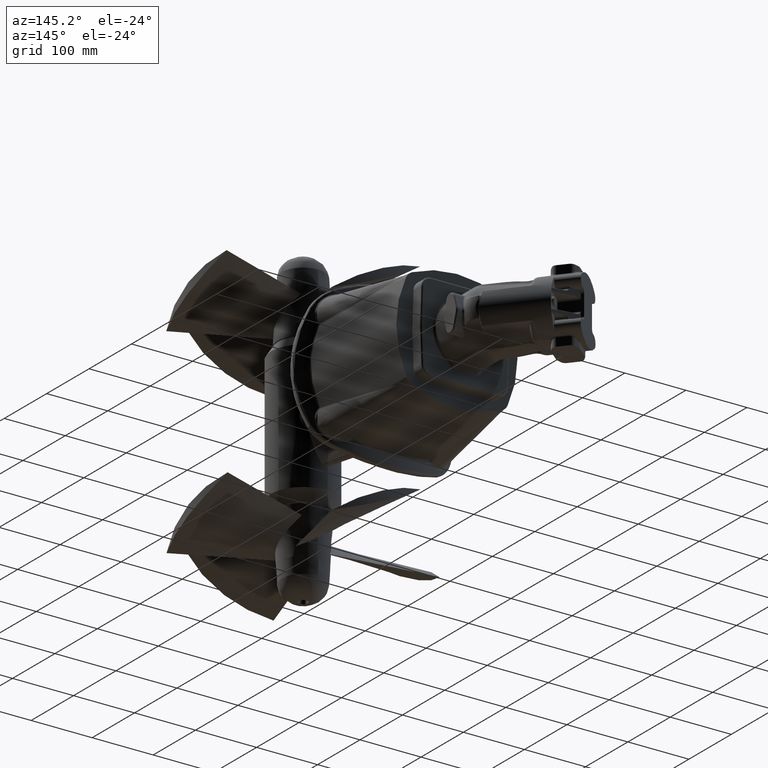
[diagram: clean part render]
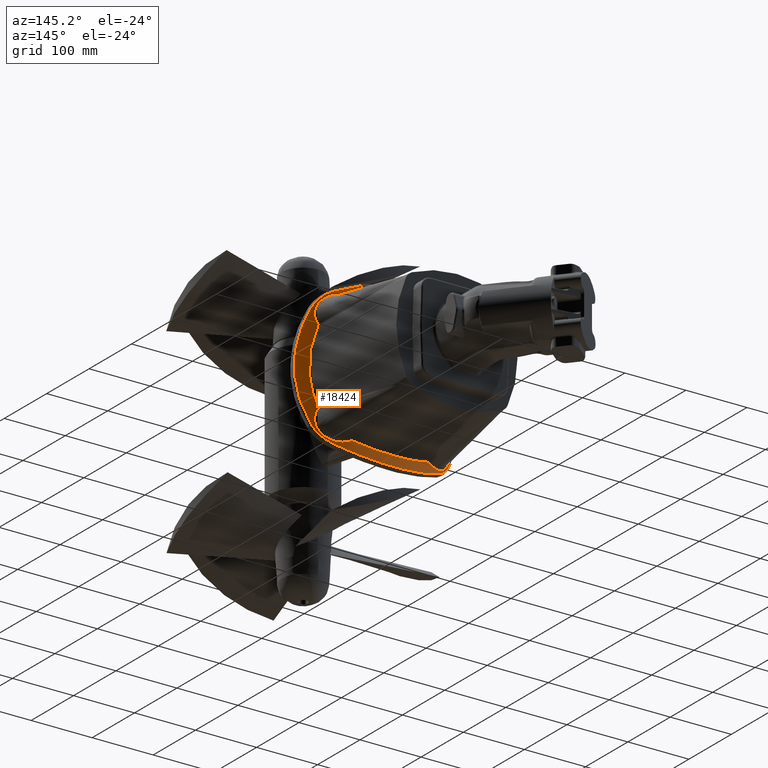
[diagram: same view with one face highlighted and labeled with its STEP entity id]
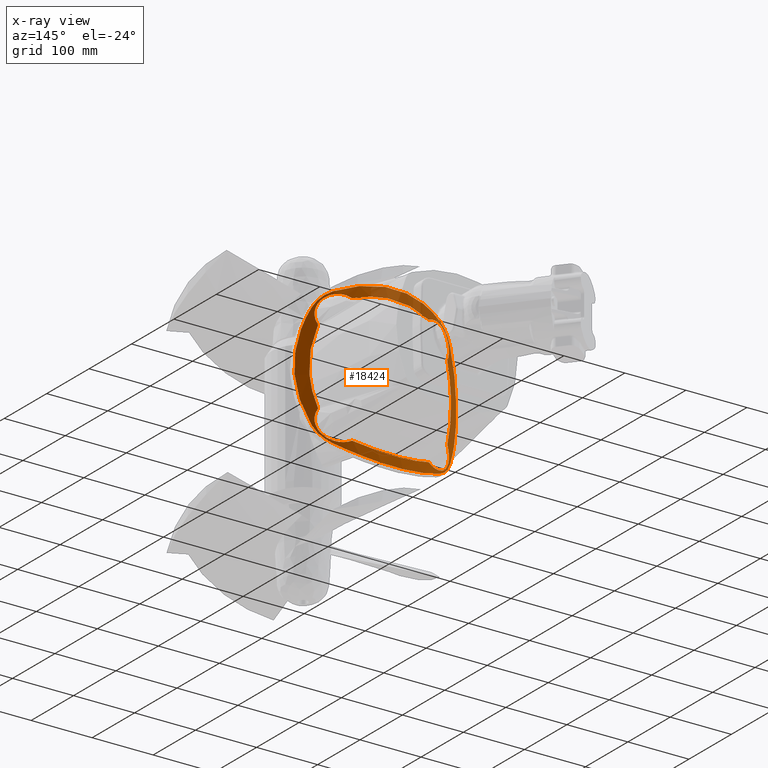
[diagram: x-ray of the same camera — body ghosted, the highlighted face saturated]
A machine part, auxiliary view. The second image highlights one B-rep face of the part: STEP entity #18424.
The next image is the same camera in x-ray: the body ghosted, the highlighted face saturated — about 28% of this face is hidden behind the body in this view.
In plain terms, the highlighted cylindrical surface (partial cylindrical patch) has radius 218.5 mm, axis along (0, -0, 1).
Its self-contained STEP definition (entity closure, byte-faithful):
#2175=B_SPLINE_CURVE_WITH_KNOTS('',3,(#30366,#30367,#30368,#30369),
 .UNSPECIFIED.,.F.,.F.,(4,4),(-0.1566549581717,-8.0093701911654E-16),
 .UNSPECIFIED.);
#2176=B_SPLINE_CURVE_WITH_KNOTS('',3,(#30394,#30395,#30396,#30397,#30398),
 .UNSPECIFIED.,.F.,.F.,(4,1,4),(-0.158430321313645,-0.0905316121792253,
1.23113629245577E-15),.UNSPECIFIED.);
#2182=B_SPLINE_CURVE_WITH_KNOTS('',3,(#30710,#30711,#30712,#30713,#30714,
#30715,#30716,#30717,#30718,#30719),.UNSPECIFIED.,.F.,.F.,(4,1,1,1,1,1,
1,4),(9.72064362525098,10.6409701929338,11.5612967606167,15.2426030313481,
17.0832561667137,18.9239093020794,20.7645624374451,22.6052155728108),
 .UNSPECIFIED.);
#2183=B_SPLINE_CURVE_WITH_KNOTS('',3,(#30743,#30744,#30745,#30746,#30747,
#30748,#30749,#30750,#30751,#30752,#30753),.UNSPECIFIED.,.F.,.F.,(4,1,1,
1,1,1,1,1,4),(-18.3472174276045,-15.7261863665181,-14.415670835975,-13.1051553054318,
-10.4841242443454,-7.86309318325907,-5.24206212217271,-2.62103106108636,
0.),.UNSPECIFIED.);
#2184=B_SPLINE_CURVE_WITH_KNOTS('',3,(#30755,#30756,#30757,#30758,#30759,
#30760,#30761,#30762,#30763,#30764,#30765,#30766,#30767,#30768,#30769,#30770,
#30771,#30772,#30773,#30774,#30775,#30776,#30777,#30778,#30779,#30780,#30781,
#30782,#30783,#30784,#30785,#30786,#30787,#30788,#30789,#30790),
 .UNSPECIFIED.,.F.,.F.,(4,2,2,2,2,2,2,2,2,2,2,2,2,2,2,2,2,4),(0.,0.313338962880444,
0.627831069228086,0.785734745888215,1.103344320034,1.26315467786212,1.50358712690408,
1.58393594588746,1.7449900545711,1.82570130926622,1.98754206155304,2.06854044917885,
2.23074352654346,2.31195524119787,2.55555119305043,2.71780441462933,3.20447675905543,
3.85533213775047),.UNSPECIFIED.);
#2185=B_SPLINE_CURVE_WITH_KNOTS('',3,(#30792,#30793,#30794,#30795,#30796,
#30797,#30798,#30799,#30800,#30801),.UNSPECIFIED.,.F.,.F.,(4,1,1,1,1,1,
1,4),(-18.1158131645623,-15.5278398553391,-12.9398665461159,-10.3518932368927,
-7.76391992766956,-5.17594661844637,-2.58797330922319,0.),.UNSPECIFIED.);
#2186=B_SPLINE_CURVE_WITH_KNOTS('',3,(#30803,#30804,#30805,#30806,#30807,
#30808,#30809,#30810,#30811,#30812,#30813,#30814,#30815,#30816,#30817,#30818,
#30819,#30820,#30821,#30822,#30823,#30824,#30825,#30826,#30827,#30828,#30829,
#30830,#30831,#30832,#30833,#30834,#30835,#30836,#30837,#30838),
 .UNSPECIFIED.,.F.,.F.,(4,2,2,2,2,2,2,2,2,2,2,2,2,2,2,2,2,4),(0.,0.325645222580926,
0.649827350207644,0.811524680246878,1.13444218756611,1.29578255426145,1.53781048990584,
1.61851693522141,1.78001781312159,1.86081456996459,2.02253853885232,2.10332921667944,
2.26467975519684,2.34504926709908,2.58493154959498,2.7439482335516,3.21768948880086,
3.84481511434516),.UNSPECIFIED.);
#2187=B_SPLINE_CURVE_WITH_KNOTS('',3,(#30840,#30841,#30842,#30843,#30844,
#30845,#30846,#30847,#30848,#30849,#30850),.UNSPECIFIED.,.F.,.F.,(4,1,1,
1,1,1,1,1,4),(-18.3472174276045,-15.7261863665181,-14.415670835975,-13.1051553054318,
-10.4841242443454,-7.86309318325907,-5.24206212217271,-2.62103106108636,
-4.56142840676578E-15),.UNSPECIFIED.);
#2188=B_SPLINE_CURVE_WITH_KNOTS('',3,(#30852,#30853,#30854,#30855,#30856,
#30857,#30858,#30859,#30860,#30861,#30862,#30863,#30864,#30865,#30866,#30867,
#30868,#30869,#30870,#30871,#30872,#30873,#30874,#30875,#30876,#30877,#30878,
#30879,#30880,#30881,#30882,#30883,#30884,#30885,#30886,#30887),
 .UNSPECIFIED.,.F.,.F.,(4,2,2,2,2,2,2,2,2,2,2,2,2,2,2,2,2,4),(0.,0.313181047381019,
0.627126247577834,0.784578230117367,1.1008669440528,1.25988358705548,1.49976587192473,
1.58013538535829,1.74148593109472,1.82227661434483,1.98400058441611,2.06479733701839,
2.22629820865227,2.30700465238583,2.54903258604403,2.71037299506959,3.19498842063407,
3.84481511738857),.UNSPECIFIED.);
#2189=B_SPLINE_CURVE_WITH_KNOTS('',3,(#30889,#30890,#30891,#30892,#30893,
#30894,#30895,#30896,#30897,#30898),.UNSPECIFIED.,.F.,.F.,(4,1,1,1,1,1,
1,4),(-18.1158131645623,-15.5278398553391,-12.9398665461159,-10.3518932368927,
-7.76391992766955,-5.17594661844637,-2.58797330922318,0.),.UNSPECIFIED.);
#2190=B_SPLINE_CURVE_WITH_KNOTS('',3,(#30899,#30900,#30901,#30902,#30903,
#30904,#30905,#30906,#30907,#30908,#30909,#30910,#30911,#30912,#30913,#30914,
#30915,#30916,#30917,#30918,#30919,#30920,#30921,#30922,#30923,#30924,#30925,
#30926,#30927,#30928,#30929,#30930,#30931,#30932,#30933,#30934),
 .UNSPECIFIED.,.F.,.F.,(4,2,2,2,2,2,2,2,2,2,2,2,2,2,2,2,2,4),(1.07088497824771E-14,
0.325905275486002,0.650856037812379,0.813121719656133,1.1375277994646,1.29978098169107,
1.54337694099187,1.62458865648814,1.78679173912611,1.86779013072979,2.0296308817571,
2.11034213123071,2.27139623215231,2.35174504900884,2.59217749477283,2.75198789278476,
3.22750169803704,3.85533214195846),.UNSPECIFIED.);
#2191=B_SPLINE_CURVE_WITH_KNOTS('',3,(#30936,#30937,#30938,#30939),
 .UNSPECIFIED.,.F.,.F.,(4,4),(-0.156654958171696,-4.14132169534547E-16),
 .UNSPECIFIED.);
#2192=B_SPLINE_CURVE_WITH_KNOTS('',3,(#30941,#30942,#30943,#30944,#30945,
#30946,#30947,#30948,#30949,#30950,#30951,#30952,#30953,#30954,#30955,#30956,
#30957),.UNSPECIFIED.,.F.,.F.,(4,1,1,1,1,1,1,1,1,1,1,1,1,1,4),(16.4724657558533,
17.07834818434,17.6842306128267,18.4415836484351,18.8959954698001,20.1077603267736,
20.7136427552603,21.9254076122337,22.228348826477,22.4555547371595,22.5312900407204,
23.7430548976938,24.3489373261805,24.5004079333021,24.9548197546672),
 .UNSPECIFIED.);
#2193=B_SPLINE_CURVE_WITH_KNOTS('',3,(#30959,#30960,#30961,#30962,#30963),
 .UNSPECIFIED.,.F.,.F.,(4,1,4),(-0.158430321313518,-0.0678987091343641,
9.54083884702158E-16),.UNSPECIFIED.);
#2194=B_SPLINE_CURVE_WITH_KNOTS('',3,(#30965,#30966,#30967,#30968,#30969,
#30970,#30971,#30972,#30973),.UNSPECIFIED.,.F.,.F.,(4,1,1,1,1,1,4),(8.93978121183471,
10.7116276507684,14.2553205286357,16.0271669675694,17.7990134065031,19.5708598454368,
21.3427062843705),.UNSPECIFIED.);
#2195=B_SPLINE_CURVE_WITH_KNOTS('',3,(#30975,#30976,#30977,#30978,#30979),
 .UNSPECIFIED.,.F.,.F.,(4,1,4),(-0.158430321313516,-0.0678987091343639,
3.92959384243506E-16),.UNSPECIFIED.);
#2196=B_SPLINE_CURVE_WITH_KNOTS('',3,(#30981,#30982,#30983,#30984,#30985,
#30986,#30987,#30988,#30989,#30990,#30991,#30992,#30993,#30994,#30995),
 .UNSPECIFIED.,.F.,.F.,(4,1,1,1,1,1,1,1,1,1,1,1,4),(16.2653519674738,16.8710447299895,
17.4767374925052,18.0824302550208,18.6881230175365,19.2938157800522,21.1108940675992,
21.8680100207438,22.3222795926306,22.6251259738884,23.5336651176619,23.8365114989198,
24.7450506426933),.UNSPECIFIED.);
#2197=B_SPLINE_CURVE_WITH_KNOTS('',3,(#30997,#30998,#30999,#31000),
 .UNSPECIFIED.,.F.,.F.,(4,4),(-0.156654958171698,6.56410601181927E-16),
 .UNSPECIFIED.);
#2198=B_SPLINE_CURVE_WITH_KNOTS('',3,(#31002,#31003,#31004,#31005,#31006,
#31007,#31008,#31009,#31010,#31011),.UNSPECIFIED.,.F.,.F.,(4,1,1,1,1,1,
1,4),(9.72064362525099,10.6409701929338,11.5612967606167,15.2426030313481,
17.0832561667137,18.9239093020794,20.7645624374451,22.6052155728108),
 .UNSPECIFIED.);
#2199=B_SPLINE_CURVE_WITH_KNOTS('',3,(#31013,#31014,#31015,#31016),
 .UNSPECIFIED.,.F.,.F.,(4,4),(-0.156654958171696,-1.96524688343491E-15),
 .UNSPECIFIED.);
#2200=B_SPLINE_CURVE_WITH_KNOTS('',3,(#31018,#31019,#31020,#31021,#31022,
#31023,#31024,#31025,#31026,#31027,#31028,#31029,#31030,#31031,#31032,#31033,
#31034),.UNSPECIFIED.,.F.,.F.,(4,1,1,1,1,1,1,1,1,1,1,1,1,1,4),(16.4744251555581,
17.08030718003,17.686189204502,18.443541735092,18.897953253446,20.10971730239,
20.7155993268619,21.9273633758059,22.2303043880419,22.3060396411009,22.5332454002779,
23.7450094492219,24.3508914736938,24.5023619798118,24.9567734981658),
 .UNSPECIFIED.);
#2201=B_SPLINE_CURVE_WITH_KNOTS('',3,(#31036,#31037,#31038,#31039,#31040),
 .UNSPECIFIED.,.F.,.F.,(4,1,4),(-0.158430321313644,-0.0905316121792253,
-6.15436200314307E-17),.UNSPECIFIED.);
#2202=B_SPLINE_CURVE_WITH_KNOTS('',3,(#31041,#31042,#31043,#31044,#31045,
#31046,#31047,#31048,#31049,#31050),.UNSPECIFIED.,.F.,.F.,(4,1,1,1,1,1,
1,4),(9.07444144829569,10.8462878872294,12.6181343261631,14.3899807650967,
16.1618272040304,17.9336736429641,19.7055200818978,21.4773665208314),
 .UNSPECIFIED.);
#2203=B_SPLINE_CURVE_WITH_KNOTS('',3,(#31051,#31052,#31053,#31054,#31055,
#31056,#31057,#31058,#31059,#31060,#31061,#31062,#31063,#31064,#31065),
 .UNSPECIFIED.,.F.,.F.,(4,1,1,1,1,1,1,1,1,1,1,1,4),(16.2673054806293,16.872998116822,
17.4786907530147,18.0843833892075,18.6900760254002,19.2957686615929,21.112846570171,
21.8699623654119,22.3242318425564,22.7785013197009,23.5356171149418,23.8384634330382,
24.7470023873272),.UNSPECIFIED.);
#3042=FACE_BOUND('',#5333,.T.);
#3203=CYLINDRICAL_SURFACE('',#19982,218.5);
#3843=FACE_OUTER_BOUND('',#5332,.T.);
#5332=EDGE_LOOP('',(#12921,#12922,#12923,#12924,#12925,#12926,#12927,#12928));
#5333=EDGE_LOOP('',(#12929,#12930,#12931,#12932,#12933,#12934,#12935,#12936,
#12937,#12938,#12939,#12940,#12941,#12942,#12943,#12944));
#7796=VERTEX_POINT('',#30357);
#7798=VERTEX_POINT('',#30364);
#7800=VERTEX_POINT('',#30391);
#7801=VERTEX_POINT('',#30393);
#7804=VERTEX_POINT('',#30708);
#7805=VERTEX_POINT('',#30741);
#7806=VERTEX_POINT('',#30742);
#7807=VERTEX_POINT('',#30754);
#7808=VERTEX_POINT('',#30791);
#7809=VERTEX_POINT('',#30802);
#7810=VERTEX_POINT('',#30839);
#7811=VERTEX_POINT('',#30851);
#7812=VERTEX_POINT('',#30888);
#7813=VERTEX_POINT('',#30935);
#7814=VERTEX_POINT('',#30940);
#7815=VERTEX_POINT('',#30958);
#7816=VERTEX_POINT('',#30964);
#7817=VERTEX_POINT('',#30974);
#7818=VERTEX_POINT('',#30980);
#7819=VERTEX_POINT('',#30996);
#7820=VERTEX_POINT('',#31001);
#7821=VERTEX_POINT('',#31012);
#7822=VERTEX_POINT('',#31017);
#7823=VERTEX_POINT('',#31035);
#9606=EDGE_CURVE('',#7798,#7796,#2175,.T.);
#9608=EDGE_CURVE('',#7800,#7801,#2176,.T.);
#9618=EDGE_CURVE('',#7804,#7798,#2182,.T.);
#9619=EDGE_CURVE('',#7805,#7806,#2183,.T.);
#9620=EDGE_CURVE('',#7807,#7805,#2184,.T.);
#9621=EDGE_CURVE('',#7808,#7807,#2185,.T.);
#9622=EDGE_CURVE('',#7809,#7808,#2186,.T.);
#9623=EDGE_CURVE('',#7810,#7809,#2187,.T.);
#9624=EDGE_CURVE('',#7811,#7810,#2188,.T.);
#9625=EDGE_CURVE('',#7812,#7811,#2189,.T.);
#9626=EDGE_CURVE('',#7806,#7812,#2190,.T.);
#9627=EDGE_CURVE('',#7813,#7804,#2191,.T.);
#9628=EDGE_CURVE('',#7814,#7813,#2192,.T.);
#9629=EDGE_CURVE('',#7815,#7814,#2193,.T.);
#9630=EDGE_CURVE('',#7816,#7815,#2194,.T.);
#9631=EDGE_CURVE('',#7817,#7816,#2195,.T.);
#9632=EDGE_CURVE('',#7818,#7817,#2196,.T.);
#9633=EDGE_CURVE('',#7819,#7818,#2197,.T.);
#9634=EDGE_CURVE('',#7820,#7819,#2198,.T.);
#9635=EDGE_CURVE('',#7821,#7820,#2199,.T.);
#9636=EDGE_CURVE('',#7822,#7821,#2200,.T.);
#9637=EDGE_CURVE('',#7823,#7822,#2201,.T.);
#9638=EDGE_CURVE('',#7801,#7823,#2202,.T.);
#9639=EDGE_CURVE('',#7796,#7800,#2203,.T.);
#12921=ORIENTED_EDGE('',*,*,#9619,.F.);
#12922=ORIENTED_EDGE('',*,*,#9620,.F.);
#12923=ORIENTED_EDGE('',*,*,#9621,.F.);
#12924=ORIENTED_EDGE('',*,*,#9622,.F.);
#12925=ORIENTED_EDGE('',*,*,#9623,.F.);
#12926=ORIENTED_EDGE('',*,*,#9624,.F.);
#12927=ORIENTED_EDGE('',*,*,#9625,.F.);
#12928=ORIENTED_EDGE('',*,*,#9626,.F.);
#12929=ORIENTED_EDGE('',*,*,#9606,.F.);
#12930=ORIENTED_EDGE('',*,*,#9618,.F.);
#12931=ORIENTED_EDGE('',*,*,#9627,.F.);
#12932=ORIENTED_EDGE('',*,*,#9628,.F.);
#12933=ORIENTED_EDGE('',*,*,#9629,.F.);
#12934=ORIENTED_EDGE('',*,*,#9630,.F.);
#12935=ORIENTED_EDGE('',*,*,#9631,.F.);
#12936=ORIENTED_EDGE('',*,*,#9632,.F.);
#12937=ORIENTED_EDGE('',*,*,#9633,.F.);
#12938=ORIENTED_EDGE('',*,*,#9634,.F.);
#12939=ORIENTED_EDGE('',*,*,#9635,.F.);
#12940=ORIENTED_EDGE('',*,*,#9636,.F.);
#12941=ORIENTED_EDGE('',*,*,#9637,.F.);
#12942=ORIENTED_EDGE('',*,*,#9638,.F.);
#12943=ORIENTED_EDGE('',*,*,#9608,.F.);
#12944=ORIENTED_EDGE('',*,*,#9639,.F.);
#18424=ADVANCED_FACE('',(#3843,#3042),#3203,.T.);
#19982=AXIS2_PLACEMENT_3D('',#30740,#22771,#22772);
#22771=DIRECTION('center_axis',(1.66533453693773E-16,-4.8305084843109E-16,
1.));
#22772=DIRECTION('ref_axis',(-1.,5.02815290480203E-16,1.66533453693774E-16));
#30357=CARTESIAN_POINT('',(67.3953376655915,108.775883055372,105.222557000298));
#30364=CARTESIAN_POINT('',(65.94800554383,109.210006990103,105.086151067995));
#30366=CARTESIAN_POINT('Ctrl Pts',(65.94800554383,109.210006990103,105.086151067995));
#30367=CARTESIAN_POINT('Ctrl Pts',(66.4201040670008,109.070179557167,104.932711246276));
#30368=CARTESIAN_POINT('Ctrl Pts',(66.9557256982009,108.90940220942,104.98643619193));
#30369=CARTESIAN_POINT('Ctrl Pts',(67.3953376655915,108.775883055372,105.222557000298));
#30391=CARTESIAN_POINT('',(110.084779868988,90.6676953241571,62.3334979342253));
#30393=CARTESIAN_POINT('',(109.969382562427,90.7318187988507,60.8088923590658));
#30394=CARTESIAN_POINT('Ctrl Pts',(110.084779868988,90.667695324157,62.3334979342253));
#30395=CARTESIAN_POINT('Ctrl Pts',(109.979296032883,90.7263518375329,62.1430914301706));
#30396=CARTESIAN_POINT('Ctrl Pts',(109.80911786188,90.820723710757,61.6380405077748));
#30397=CARTESIAN_POINT('Ctrl Pts',(109.872683557868,90.7855138560104,61.0890606307606));
#30398=CARTESIAN_POINT('Ctrl Pts',(109.969382562427,90.7318187988507,60.8088923590658));
#30708=CARTESIAN_POINT('',(-58.1548519818797,109.210006990103,105.086151067995));
#30710=CARTESIAN_POINT('Ctrl Pts',(-58.1548519818797,109.210006990103,105.086151067995));
#30711=CARTESIAN_POINT('Ctrl Pts',(-55.3760572517268,110.033038020075,105.989305276412));
#30712=CARTESIAN_POINT('Ctrl Pts',(-49.7672034797093,111.572236254259,107.676575240901));
#30713=CARTESIAN_POINT('Ctrl Pts',(-32.5041634157577,115.590218479754,112.072500323683));
#30714=CARTESIAN_POINT('Ctrl Pts',(-11.2534962590815,118.277877653465,115.000075914142));
#30715=CARTESIAN_POINT('Ctrl Pts',(12.9849416108882,118.267278819013,114.989006308675));
#30716=CARTESIAN_POINT('Ctrl Pts',(31.1920291199521,116.752930317803,113.338575226992));
#30717=CARTESIAN_POINT('Ctrl Pts',(49.026433586474,113.741847945499,110.051777911848));
#30718=CARTESIAN_POINT('Ctrl Pts',(60.3904160835242,110.856069050046,106.892459484829));
#30719=CARTESIAN_POINT('Ctrl Pts',(65.94800554383,109.210006990103,105.086151067995));
#30740=CARTESIAN_POINT('Origin',(3.89657678097504,-100.293859772514,-3.22507180430981E-8));
#30741=CARTESIAN_POINT('',(-84.064652815031,99.7188200454385,-111.907491916442));
#30742=CARTESIAN_POINT('',(91.8578063769813,99.7188200454384,-111.907491916442));
#30743=CARTESIAN_POINT('Ctrl Pts',(-84.064652815031,99.7188200454385,-111.907491916442));
#30744=CARTESIAN_POINT('Ctrl Pts',(-76.5975589645037,103.002685634355,-115.314039439292));
#30745=CARTESIAN_POINT('Ctrl Pts',(-64.8403015673793,107.417012753066,-119.88006149377));
#30746=CARTESIAN_POINT('Ctrl Pts',(-48.3960615511409,111.987338956805,-124.596229831582));
#30747=CARTESIAN_POINT('Ctrl Pts',(-31.410524983108,115.643445792245,-128.363777529929));
#30748=CARTESIAN_POINT('Ctrl Pts',(-9.51313056322293,118.337525427584,-131.135136833688));
#30749=CARTESIAN_POINT('Ctrl Pts',(17.1919183102008,118.342271401838,-131.140083932874));
#30750=CARTESIAN_POINT('Ctrl Pts',(43.4635806525125,115.127839722858,-127.833316815002));
#30751=CARTESIAN_POINT('Ctrl Pts',(68.6676165067136,108.908560264867,-121.422843135002));
#30752=CARTESIAN_POINT('Ctrl Pts',(84.390712526454,103.002685634355,-115.314039439292));
#30753=CARTESIAN_POINT('Ctrl Pts',(91.8578063769813,99.7188200454384,-111.907491916442));
#30754=CARTESIAN_POINT('',(-109.568792020398,86.4355168203736,-86.7535239587462));
#30755=CARTESIAN_POINT('Ctrl Pts',(-109.568792020398,86.4355168203736,-86.7535239587462));
#30756=CARTESIAN_POINT('Ctrl Pts',(-109.137996274051,86.6972881556031,-87.6720685214567));
#30757=CARTESIAN_POINT('Ctrl Pts',(-108.680612100326,86.9731755506148,-88.5763180320649));
#30758=CARTESIAN_POINT('Ctrl Pts',(-107.71375291928,87.5510303617752,-90.3556044414028));
#30759=CARTESIAN_POINT('Ctrl Pts',(-107.204095628277,87.8530853726808,-91.2305149568838));
#30760=CARTESIAN_POINT('Ctrl Pts',(-106.403018563165,88.3230686554845,-92.5173255034503));
#30761=CARTESIAN_POINT('Ctrl Pts',(-106.129291489666,88.4828939758854,-92.9428639365705));
#30762=CARTESIAN_POINT('Ctrl Pts',(-105.287754858973,88.9717061917662,-94.2098364022499));
#30763=CARTESIAN_POINT('Ctrl Pts',(-104.7024873456,89.308302723693,-95.0366125749681));
#30764=CARTESIAN_POINT('Ctrl Pts',(-103.791037342629,89.8264991746315,-96.2475858518049));
#30765=CARTESIAN_POINT('Ctrl Pts',(-103.480650385542,90.0019956618075,-96.6475542813853));
#30766=CARTESIAN_POINT('Ctrl Pts',(-102.6888182849,90.4470676815599,-97.6375837913471));
#30767=CARTESIAN_POINT('Ctrl Pts',(-102.200477733983,90.7192072997132,-98.2211944453832));
#30768=CARTESIAN_POINT('Ctrl Pts',(-101.532852674005,91.0877535725839,-98.9843160089608));
#30769=CARTESIAN_POINT('Ctrl Pts',(-101.364283240358,91.1805221526788,-99.1741590419489));
#30770=CARTESIAN_POINT('Ctrl Pts',(-100.853861616003,91.4605314831939,-99.7405576006975));
#30771=CARTESIAN_POINT('Ctrl Pts',(-100.508028994798,91.6490682168159,-100.113120916613));
#30772=CARTESIAN_POINT('Ctrl Pts',(-99.9812545459909,91.9343540749029,-100.664175300201));
#30773=CARTESIAN_POINT('Ctrl Pts',(-99.8041188301025,92.0299733978691,-100.846765045318));
#30774=CARTESIAN_POINT('Ctrl Pts',(-99.2680330049826,92.3183888776856,-101.391279119529));
#30775=CARTESIAN_POINT('Ctrl Pts',(-98.9053135890888,92.5122462332126,-101.748993588134));
#30776=CARTESIAN_POINT('Ctrl Pts',(-98.3538717330636,92.8049211550311,-102.277094201666));
#30777=CARTESIAN_POINT('Ctrl Pts',(-98.1687372061958,92.9028433273633,-102.451794521347));
#30778=CARTESIAN_POINT('Ctrl Pts',(-97.6093486113128,93.1976776310839,-102.971952889796));
#30779=CARTESIAN_POINT('Ctrl Pts',(-97.2315727327403,93.3954094377314,-103.313013092689));
#30780=CARTESIAN_POINT('Ctrl Pts',(-96.6579717959114,93.6934577328455,-103.815828437269));
#30781=CARTESIAN_POINT('Ctrl Pts',(-96.4654815786499,93.7931175180354,-103.982081216793));
#30782=CARTESIAN_POINT('Ctrl Pts',(-95.6912827380093,94.1924770879355,-104.640926462458));
#30783=CARTESIAN_POINT('Ctrl Pts',(-95.0995321968368,94.4944242575558,-105.122522740981));
#30784=CARTESIAN_POINT('Ctrl Pts',(-94.0960554967334,95.000523547726,-105.90322616972));
#30785=CARTESIAN_POINT('Ctrl Pts',(-93.6902080271827,95.2036573994416,-106.209560745685));
#30786=CARTESIAN_POINT('Ctrl Pts',(-92.0491503823109,96.0185383766287,-107.41103710209));
#30787=CARTESIAN_POINT('Ctrl Pts',(-90.7781124455521,96.6351570382729,-108.258706670955));
#30788=CARTESIAN_POINT('Ctrl Pts',(-87.7265941425096,98.0774575264386,-110.106574104464));
#30789=CARTESIAN_POINT('Ctrl Pts',(-85.9188842539454,98.9033693576574,-111.061576806566));
#30790=CARTESIAN_POINT('Ctrl Pts',(-84.064652815031,99.7188200454385,-111.907491916442));
#30791=CARTESIAN_POINT('',(-109.568792020398,86.4355168203735,86.7535238942451));
#30792=CARTESIAN_POINT('Ctrl Pts',(-109.568792020398,86.4355168203735,86.753523894245));
#30793=CARTESIAN_POINT('Ctrl Pts',(-113.126880944363,84.2734581269202,79.1669512261895));
#30794=CARTESIAN_POINT('Ctrl Pts',(-119.342533264153,80.2184472928578,63.5053115483124));
#30795=CARTESIAN_POINT('Ctrl Pts',(-125.777475394888,75.5991615155771,38.6711881142813));
#30796=CARTESIAN_POINT('Ctrl Pts',(-129.060203029711,73.099357823602,13.0253072801163));
#30797=CARTESIAN_POINT('Ctrl Pts',(-129.066289813177,73.0940661282161,-12.9597723021451));
#30798=CARTESIAN_POINT('Ctrl Pts',(-125.7866475809,75.59235820107,-38.6107070789086));
#30799=CARTESIAN_POINT('Ctrl Pts',(-119.373841312242,80.1971505111735,-63.4161680207077));
#30800=CARTESIAN_POINT('Ctrl Pts',(-113.126880944363,84.2734581269203,-79.1669512906906));
#30801=CARTESIAN_POINT('Ctrl Pts',(-109.568792020398,86.4355168203736,-86.7535239587463));
#30802=CARTESIAN_POINT('',(-84.0646528150309,99.7188200454384,111.907491851941));
#30803=CARTESIAN_POINT('Ctrl Pts',(-84.0646528150309,99.7188200454384,111.907491851941));
#30804=CARTESIAN_POINT('Ctrl Pts',(-84.992388268108,99.3108221561709,111.484251569603));
#30805=CARTESIAN_POINT('Ctrl Pts',(-85.9092387171701,98.899897546624,111.033400522073));
#30806=CARTESIAN_POINT('Ctrl Pts',(-87.7130868321409,98.0767481717837,110.079926012898));
#30807=CARTESIAN_POINT('Ctrl Pts',(-88.6001960754412,97.6645409644782,109.577546188243));
#30808=CARTESIAN_POINT('Ctrl Pts',(-89.9077038206896,97.0465530960776,108.785783097527));
#30809=CARTESIAN_POINT('Ctrl Pts',(-90.3391693924857,96.8408637083784,108.515852368791));
#30810=CARTESIAN_POINT('Ctrl Pts',(-91.6206093357719,96.2248798151496,107.687917346075));
#30811=CARTESIAN_POINT('Ctrl Pts',(-92.4589257086677,95.8150579259799,107.111019608299));
#30812=CARTESIAN_POINT('Ctrl Pts',(-93.6900730371519,95.2037245596023,106.209659343026));
#30813=CARTESIAN_POINT('Ctrl Pts',(-94.0959256823524,95.0005884406345,105.903325548858));
#30814=CARTESIAN_POINT('Ctrl Pts',(-95.0992441545825,94.4945692930563,105.122745943434));
#30815=CARTESIAN_POINT('Ctrl Pts',(-95.6910287252787,94.1926078975581,104.641141831836));
#30816=CARTESIAN_POINT('Ctrl Pts',(-96.4656073628611,93.793052432758,103.981973378104));
#30817=CARTESIAN_POINT('Ctrl Pts',(-96.6580947219028,93.6933936647636,103.815719890319));
#30818=CARTESIAN_POINT('Ctrl Pts',(-97.232054906446,93.395158698492,103.312589605644));
#30819=CARTESIAN_POINT('Ctrl Pts',(-97.6098124966612,93.1974329636427,102.971520779348));
#30820=CARTESIAN_POINT('Ctrl Pts',(-98.1688519171141,92.9027827209696,102.451687124001));
#30821=CARTESIAN_POINT('Ctrl Pts',(-98.3539841573329,92.8048613495633,102.276985862715));
#30822=CARTESIAN_POINT('Ctrl Pts',(-98.9057463624104,92.5120163952789,101.748578403507));
#30823=CARTESIAN_POINT('Ctrl Pts',(-99.2684474460247,92.3181658089319,101.390857730184));
#30824=CARTESIAN_POINT('Ctrl Pts',(-99.804222133503,92.0299177210277,100.846659511439));
#30825=CARTESIAN_POINT('Ctrl Pts',(-99.9813568094961,91.9342986763858,100.664068491094));
#30826=CARTESIAN_POINT('Ctrl Pts',(-100.508136686806,91.6490095959679,100.113005771312));
#30827=CARTESIAN_POINT('Ctrl Pts',(-100.85352034926,91.4607183671918,99.7409333914325));
#30828=CARTESIAN_POINT('Ctrl Pts',(-101.364164306517,91.1805874755929,99.1742917816742));
#30829=CARTESIAN_POINT('Ctrl Pts',(-101.53273091151,91.087820713209,98.9844545894364));
#30830=CARTESIAN_POINT('Ctrl Pts',(-102.19952732113,90.7197321012434,98.2222818291248));
#30831=CARTESIAN_POINT('Ctrl Pts',(-102.687963407981,90.4475481279297,97.6386509392369));
#30832=CARTESIAN_POINT('Ctrl Pts',(-103.480348345303,90.0021657265973,96.6479352261507));
#30833=CARTESIAN_POINT('Ctrl Pts',(-103.790980903974,89.8265313516671,96.2476605680771));
#30834=CARTESIAN_POINT('Ctrl Pts',(-105.005207076404,89.1361949854273,94.6344238131198));
#30835=CARTESIAN_POINT('Ctrl Pts',(-105.865445066351,88.6384595066227,93.380858818506));
#30836=CARTESIAN_POINT('Ctrl Pts',(-107.736898850416,87.5404934332773,90.3746778297474));
#30837=CARTESIAN_POINT('Ctrl Pts',(-108.706585005268,86.9594335106124,88.5919254392817));
#30838=CARTESIAN_POINT('Ctrl Pts',(-109.568792020398,86.4355168203736,86.7535238942451));
#30839=CARTESIAN_POINT('',(91.8578063769812,99.7188200454383,111.907491851941));
#30840=CARTESIAN_POINT('Ctrl Pts',(91.8578063769812,99.7188200454383,111.907491851941));
#30841=CARTESIAN_POINT('Ctrl Pts',(84.3907125264539,103.002685634355,115.314039374791));
#30842=CARTESIAN_POINT('Ctrl Pts',(72.6337445305218,107.417040431252,119.880086222797));
#30843=CARTESIAN_POINT('Ctrl Pts',(56.1888176207668,111.987311853276,124.596204782251));
#30844=CARTESIAN_POINT('Ctrl Pts',(39.2045195149843,115.643584575421,128.363900642668));
#30845=CARTESIAN_POINT('Ctrl Pts',(17.3060314505517,118.336478935511,131.134107534964));
#30846=CARTESIAN_POINT('Ctrl Pts',(-9.40051240320616,118.343025874316,131.140815690077));
#30847=CARTESIAN_POINT('Ctrl Pts',(-35.6724633035432,115.12652927054,127.832010308781));
#30848=CARTESIAN_POINT('Ctrl Pts',(-60.87085752459,108.909903384265,121.424197225324));
#30849=CARTESIAN_POINT('Ctrl Pts',(-76.5975589645036,103.002685634355,115.314039374791));
#30850=CARTESIAN_POINT('Ctrl Pts',(-84.0646528150309,99.7188200454384,111.907491851941));
#30851=CARTESIAN_POINT('',(117.361945582348,86.4355168203734,86.7535238942449));
#30852=CARTESIAN_POINT('Ctrl Pts',(117.361945582348,86.4355168203735,86.7535238942452));
#30853=CARTESIAN_POINT('Ctrl Pts',(116.93136694697,86.6971562289798,87.6716055320055));
#30854=CARTESIAN_POINT('Ctrl Pts',(116.474036733046,86.9730135014903,88.5758184568911));
#30855=CARTESIAN_POINT('Ctrl Pts',(115.507231833637,87.5508358277073,90.355004930266));
#30856=CARTESIAN_POINT('Ctrl Pts',(114.997634346213,87.8528592783415,91.2298950417141));
#30857=CARTESIAN_POINT('Ctrl Pts',(114.196277293305,88.3230068808311,92.5171556541218));
#30858=CARTESIAN_POINT('Ctrl Pts',(113.922558485064,88.4828280228669,92.9426923301341));
#30859=CARTESIAN_POINT('Ctrl Pts',(113.081405308816,88.9714174015375,94.2090869307858));
#30860=CARTESIAN_POINT('Ctrl Pts',(112.496213024241,89.3079771529637,95.0358498370676));
#30861=CARTESIAN_POINT('Ctrl Pts',(111.584135358454,89.8265308260403,96.2476603497663));
#30862=CARTESIAN_POINT('Ctrl Pts',(111.273501383782,90.0021658300811,96.6479341342774));
#30863=CARTESIAN_POINT('Ctrl Pts',(110.481116941702,90.4475480519683,97.6386502763854));
#30864=CARTESIAN_POINT('Ctrl Pts',(109.992680688524,90.7197321521836,98.2222814068501));
#30865=CARTESIAN_POINT('Ctrl Pts',(109.325884315649,91.0878207701551,98.9844543230632));
#30866=CARTESIAN_POINT('Ctrl Pts',(109.157317701267,91.1805875387862,99.1742915244171));
#30867=CARTESIAN_POINT('Ctrl Pts',(108.646673742421,91.4607184436596,99.7409332062841));
#30868=CARTESIAN_POINT('Ctrl Pts',(108.30129009132,91.6490096875952,100.113005685575));
#30869=CARTESIAN_POINT('Ctrl Pts',(107.77451020497,91.9342987840409,100.664068466023));
#30870=CARTESIAN_POINT('Ctrl Pts',(107.597375520993,92.0299178355535,100.846659504904));
#30871=CARTESIAN_POINT('Ctrl Pts',(107.061600835671,92.3181659337533,101.390857766179));
#30872=CARTESIAN_POINT('Ctrl Pts',(106.698899780505,92.5120165281746,101.748578498088));
#30873=CARTESIAN_POINT('Ctrl Pts',(106.147137599788,92.8048614823918,102.276985973938));
#30874=CARTESIAN_POINT('Ctrl Pts',(105.962005373718,92.9027828494379,102.451687230526));
#30875=CARTESIAN_POINT('Ctrl Pts',(105.402965998061,93.1974330835168,102.971520885311));
#30876=CARTESIAN_POINT('Ctrl Pts',(105.025208463652,93.3951588196116,103.312589745225));
#30877=CARTESIAN_POINT('Ctrl Pts',(104.451248325069,93.6933937822955,103.81572003676));
#30878=CARTESIAN_POINT('Ctrl Pts',(104.25876097163,93.7930525471012,103.981973518759));
#30879=CARTESIAN_POINT('Ctrl Pts',(103.48418241237,94.1926080285938,104.641142031569));
#30880=CARTESIAN_POINT('Ctrl Pts',(102.892397921838,94.4945693825281,105.122746114248));
#30881=CARTESIAN_POINT('Ctrl Pts',(101.889079624136,95.0005887678059,105.90332617125));
#30882=CARTESIAN_POINT('Ctrl Pts',(101.483226332547,95.2037244350231,106.209658954334));
#30883=CARTESIAN_POINT('Ctrl Pts',(99.8409916083057,96.0191902618314,107.411997577378));
#30884=CARTESIAN_POINT('Ctrl Pts',(98.5698321347825,96.6358347197834,108.259574785385));
#30885=CARTESIAN_POINT('Ctrl Pts',(95.5170317311208,98.0787416358504,110.108218157217));
#30886=CARTESIAN_POINT('Ctrl Pts',(93.7091071888202,98.9046581837521,111.062913717414));
#30887=CARTESIAN_POINT('Ctrl Pts',(91.8578063769812,99.7188200454383,111.907491851941));
#30888=CARTESIAN_POINT('',(117.361945582348,86.4355168203735,-86.7535239587463));
#30889=CARTESIAN_POINT('Ctrl Pts',(117.361945582348,86.4355168203735,-86.7535239587462));
#30890=CARTESIAN_POINT('Ctrl Pts',(120.920034506313,84.2734581269202,-79.1669512906906));
#30891=CARTESIAN_POINT('Ctrl Pts',(127.166815812522,80.1975123794852,-63.4174170071451));
#30892=CARTESIAN_POINT('Ctrl Pts',(133.580318262123,75.5914383634248,-38.607512613297));
#30893=CARTESIAN_POINT('Ctrl Pts',(136.859061350386,73.0952386121086,-12.9614728235758));
#30894=CARTESIAN_POINT('Ctrl Pts',(136.85324783254,73.0985068110243,13.0302521994066));
#30895=CARTESIAN_POINT('Ctrl Pts',(133.570841308273,75.5995142753105,38.6671692728364));
#30896=CARTESIAN_POINT('Ctrl Pts',(127.135657264908,80.2182473664771,63.5067246889503));
#30897=CARTESIAN_POINT('Ctrl Pts',(120.920034506313,84.2734581269201,79.1669512261894));
#30898=CARTESIAN_POINT('Ctrl Pts',(117.361945582348,86.4355168203734,86.7535238942449));
#30899=CARTESIAN_POINT('Ctrl Pts',(91.8578063769812,99.7188200454384,-111.907491916442));
#30900=CARTESIAN_POINT('Ctrl Pts',(92.786282698597,99.3104963382892,-111.483913643993));
#30901=CARTESIAN_POINT('Ctrl Pts',(93.7031092988714,98.8995703569714,-111.033021720818));
#30902=CARTESIAN_POINT('Ctrl Pts',(95.506938650292,98.0764295363326,-110.079557140963));
#30903=CARTESIAN_POINT('Ctrl Pts',(96.3940173521778,97.6642253646418,-109.577142153866));
#30904=CARTESIAN_POINT('Ctrl Pts',(97.7010190019187,97.0464767604116,-108.785685636138));
#30905=CARTESIAN_POINT('Ctrl Pts',(98.1324802523129,96.8407881469854,-108.515751143853));
#30906=CARTESIAN_POINT('Ctrl Pts',(99.4143760635805,96.22458507441,-107.687521581824));
#30907=CARTESIAN_POINT('Ctrl Pts',(100.252654277606,95.8147724187755,-107.110599115162));
#30908=CARTESIAN_POINT('Ctrl Pts',(101.48336251156,95.2036571635162,-106.209560505664));
#30909=CARTESIAN_POINT('Ctrl Pts',(101.88920910216,95.0005230226679,-105.903225144205));
#30910=CARTESIAN_POINT('Ctrl Pts',(102.892685977467,94.4944239549106,-105.122522159142));
#30911=CARTESIAN_POINT('Ctrl Pts',(103.484436504167,94.1924767952814,-104.640925931982));
#30912=CARTESIAN_POINT('Ctrl Pts',(104.258635432982,93.7931172350964,-103.982080733861));
#30913=CARTESIAN_POINT('Ctrl Pts',(104.451125654921,93.6934574472557,-103.81582794897));
#30914=CARTESIAN_POINT('Ctrl Pts',(105.024726637318,93.3954091480058,-103.313012608189));
#30915=CARTESIAN_POINT('Ctrl Pts',(105.402502576894,93.1976773387444,-102.97195242644));
#30916=CARTESIAN_POINT('Ctrl Pts',(105.961891222742,92.9028430226118,-102.451794046778));
#30917=CARTESIAN_POINT('Ctrl Pts',(106.147025766023,92.8049208445982,-102.277093718894));
#30918=CARTESIAN_POINT('Ctrl Pts',(106.698467660086,92.5122459149715,-101.748993103297));
#30919=CARTESIAN_POINT('Ctrl Pts',(107.06118713513,92.3183885505003,-101.391278650243));
#30920=CARTESIAN_POINT('Ctrl Pts',(107.597272982445,92.0299730700586,-100.846764590127));
#30921=CARTESIAN_POINT('Ctrl Pts',(107.774408696106,91.9343537508353,-100.664174855701));
#30922=CARTESIAN_POINT('Ctrl Pts',(108.301183160742,91.6490678954488,-100.113120498778));
#30923=CARTESIAN_POINT('Ctrl Pts',(108.647015856646,91.4605311429733,-99.7405571981954));
#30924=CARTESIAN_POINT('Ctrl Pts',(109.157437519482,91.1805218044191,-99.1741586580423));
#30925=CARTESIAN_POINT('Ctrl Pts',(109.326006951325,91.0877532262352,-98.9843156231485));
#30926=CARTESIAN_POINT('Ctrl Pts',(109.993632154496,90.7192069041847,-98.221194086723));
#30927=CARTESIAN_POINT('Ctrl Pts',(110.481972851367,90.4470672367649,-97.637583238029));
#30928=CARTESIAN_POINT('Ctrl Pts',(111.273805695206,90.0019949287421,-96.6475539489207));
#30929=CARTESIAN_POINT('Ctrl Pts',(111.584191386667,89.826498914142,-96.2475841204426));
#30930=CARTESIAN_POINT('Ctrl Pts',(112.797107552088,89.1369082661958,-94.6360941413674));
#30931=CARTESIAN_POINT('Ctrl Pts',(113.657578903162,88.639057922242,-93.3824961796699));
#30932=CARTESIAN_POINT('Ctrl Pts',(115.528623224209,87.5413328871672,-90.3769821402864));
#30933=CARTESIAN_POINT('Ctrl Pts',(116.498769543908,86.9600223338026,-88.5939916594955));
#30934=CARTESIAN_POINT('Ctrl Pts',(117.361945582348,86.4355168203735,-86.7535239587463));
#30935=CARTESIAN_POINT('',(-59.6021841036411,108.775883055372,105.222557000298));
#30936=CARTESIAN_POINT('Ctrl Pts',(-59.6021841036412,108.775883055372,105.222557000298));
#30937=CARTESIAN_POINT('Ctrl Pts',(-59.1625721362506,108.90940220942,104.98643619193));
#30938=CARTESIAN_POINT('Ctrl Pts',(-58.6269505050505,109.070179557167,104.932711246276));
#30939=CARTESIAN_POINT('Ctrl Pts',(-58.1548519818797,109.210006990103,105.086151067995));
#30940=CARTESIAN_POINT('',(-102.291626307038,90.6676953241572,62.3334979342253));
#30941=CARTESIAN_POINT('Ctrl Pts',(-102.291626307038,90.6676953241572,62.3334979342253));
#30942=CARTESIAN_POINT('Ctrl Pts',(-103.238038484937,90.1414228579488,64.0418453061342));
#30943=CARTESIAN_POINT('Ctrl Pts',(-104.829038347287,89.2385799150238,67.6652682957233));
#30944=CARTESIAN_POINT('Ctrl Pts',(-106.293403630434,88.3872274034542,74.105813778481));
#30945=CARTESIAN_POINT('Ctrl Pts',(-106.29446845826,88.3866393133252,80.2601379089748));
#30946=CARTESIAN_POINT('Ctrl Pts',(-104.746571067742,89.2867501488512,88.2156460261817));
#30947=CARTESIAN_POINT('Ctrl Pts',(-101.387306054825,91.1996669028357,94.9430781698892));
#30948=CARTESIAN_POINT('Ctrl Pts',(-95.0546419320694,94.5592632362137,101.987597217674));
#30949=CARTESIAN_POINT('Ctrl Pts',(-89.4655626009202,97.3039947148383,105.582459672365));
#30950=CARTESIAN_POINT('Ctrl Pts',(-84.501379413698,99.5313781817766,107.41373412618));
#30951=CARTESIAN_POINT('Ctrl Pts',(-82.7213829667831,100.30622566058,107.923991872091));
#30952=CARTESIAN_POINT('Ctrl Pts',(-78.2034572234615,102.236245231882,109.001189183208));
#30953=CARTESIAN_POINT('Ctrl Pts',(-72.332283637763,104.54684003718,109.299725990085));
#30954=CARTESIAN_POINT('Ctrl Pts',(-66.2601610201171,106.648276865561,107.953947808543));
#30955=CARTESIAN_POINT('Ctrl Pts',(-62.636883900464,107.837045361592,106.700786745404));
#30956=CARTESIAN_POINT('Ctrl Pts',(-60.8856318700136,108.386073694522,105.911912037406));
#30957=CARTESIAN_POINT('Ctrl Pts',(-59.6021841036411,108.775883055372,105.222557000298));
#30958=CARTESIAN_POINT('',(-102.176229000477,90.7318187988508,60.8088923590658));
#30959=CARTESIAN_POINT('Ctrl Pts',(-102.176229000477,90.7318187988508,60.8088923590658));
#30960=CARTESIAN_POINT('Ctrl Pts',(-102.079529995918,90.7855138560102,61.0890606307594));
#30961=CARTESIAN_POINT('Ctrl Pts',(-102.015964190187,90.820723770933,61.6380405157701));
#30962=CARTESIAN_POINT('Ctrl Pts',(-102.186142470933,90.7263518375331,62.1430914301704));
#30963=CARTESIAN_POINT('Ctrl Pts',(-102.291626307038,90.6676953241572,62.3334979342253));
#30964=CARTESIAN_POINT('',(-102.176229000477,90.7318187988508,-60.8088924235671));
#30965=CARTESIAN_POINT('Ctrl Pts',(-102.176229000477,90.7318187988509,-60.8088924235671));
#30966=CARTESIAN_POINT('Ctrl Pts',(-104.069833952369,89.6803371771601,-55.3225068184275));
#30967=CARTESIAN_POINT('Ctrl Pts',(-109.041272966323,86.8036668286988,-38.4835660891587));
#30968=CARTESIAN_POINT('Ctrl Pts',(-112.481377907197,84.630436761805,-14.7776116116275));
#30969=CARTESIAN_POINT('Ctrl Pts',(-112.471012771999,84.6423464787092,8.86532152852752));
#30970=CARTESIAN_POINT('Ctrl Pts',(-110.770999109039,85.7063431774745,26.6334005844358));
#30971=CARTESIAN_POINT('Ctrl Pts',(-107.375917656075,87.7716160144402,44.0940379106513));
#30972=CARTESIAN_POINT('Ctrl Pts',(-104.069833952369,89.68033717716,55.3225067539263));
#30973=CARTESIAN_POINT('Ctrl Pts',(-102.176229000477,90.7318187988508,60.8088923590658));
#30974=CARTESIAN_POINT('',(-102.291626307038,90.6676953241573,-62.3334979987266));
#30975=CARTESIAN_POINT('Ctrl Pts',(-102.291626307038,90.6676953241573,-62.3334979987266));
#30976=CARTESIAN_POINT('Ctrl Pts',(-102.150981192231,90.7459040086583,-62.0796226599873));
#30977=CARTESIAN_POINT('Ctrl Pts',(-102.010531980155,90.8237185891942,-61.5539754239745));
#30978=CARTESIAN_POINT('Ctrl Pts',(-102.103704747058,90.7720900917206,-61.0190186273381));
#30979=CARTESIAN_POINT('Ctrl Pts',(-102.176229000477,90.7318187988509,-60.808892423567));
#30980=CARTESIAN_POINT('',(-59.6021841036411,108.775883055372,-105.222557064799));
#30981=CARTESIAN_POINT('Ctrl Pts',(-59.6021841036411,108.775883055372,-105.222557064799));
#30982=CARTESIAN_POINT('Ctrl Pts',(-61.3149667981353,108.255675887688,-106.142512990437));
#30983=CARTESIAN_POINT('Ctrl Pts',(-64.8987356919362,107.120030522109,-107.652168900857));
#30984=CARTESIAN_POINT('Ctrl Pts',(-70.4442301305417,105.199813270403,-108.884117187045));
#30985=CARTESIAN_POINT('Ctrl Pts',(-76.1178267767075,103.058617835639,-109.107169687153));
#30986=CARTESIAN_POINT('Ctrl Pts',(-81.6207877124547,100.803423338741,-108.350616201389));
#30987=CARTESIAN_POINT('Ctrl Pts',(-90.4809633164932,96.8972319335744,-105.500141074059));
#30988=CARTESIAN_POINT('Ctrl Pts',(-98.4310268377756,92.8264768362154,-99.4049521339202));
#30989=CARTESIAN_POINT('Ctrl Pts',(-103.415626391826,90.0436871316215,-90.9000566478867));
#30990=CARTESIAN_POINT('Ctrl Pts',(-105.054873181596,89.1061670029218,-86.2089299552987));
#30991=CARTESIAN_POINT('Ctrl Pts',(-106.265074479617,88.4042457462772,-80.7600181275514));
#30992=CARTESIAN_POINT('Ctrl Pts',(-106.37474686257,88.3397848314851,-75.6388479086364));
#30993=CARTESIAN_POINT('Ctrl Pts',(-105.154541343852,89.0493953614697,-68.6309789942299));
#30994=CARTESIAN_POINT('Ctrl Pts',(-103.71450843546,89.8764716857308,-64.9019105798304));
#30995=CARTESIAN_POINT('Ctrl Pts',(-102.291626307038,90.6676953241573,-62.3334979987266));
#30996=CARTESIAN_POINT('',(-58.1548519818797,109.210006990103,-105.086151132497));
#30997=CARTESIAN_POINT('Ctrl Pts',(-58.1548519818797,109.210006990103,-105.086151132497));
#30998=CARTESIAN_POINT('Ctrl Pts',(-58.6269505050509,109.070179557167,-104.932711310777));
#30999=CARTESIAN_POINT('Ctrl Pts',(-59.1625721362506,108.90940220942,-104.986436256431));
#31000=CARTESIAN_POINT('Ctrl Pts',(-59.6021841036411,108.775883055372,-105.222557064799));
#31001=CARTESIAN_POINT('',(65.9480055438299,109.210006990103,-105.086151132497));
#31002=CARTESIAN_POINT('Ctrl Pts',(65.9480055438299,109.210006990103,-105.086151132497));
#31003=CARTESIAN_POINT('Ctrl Pts',(63.169210813677,110.033038020075,-105.989305340913));
#31004=CARTESIAN_POINT('Ctrl Pts',(57.5603570416597,111.572236254259,-107.676575305402));
#31005=CARTESIAN_POINT('Ctrl Pts',(40.297316977708,115.590218479754,-112.072500388184));
#31006=CARTESIAN_POINT('Ctrl Pts',(19.0466498210315,118.277877653465,-115.000075978643));
#31007=CARTESIAN_POINT('Ctrl Pts',(-5.19178804893758,118.267278819013,-114.989006373176));
#31008=CARTESIAN_POINT('Ctrl Pts',(-23.3988755580018,116.752930317803,-113.338575291493));
#31009=CARTESIAN_POINT('Ctrl Pts',(-41.2332800245235,113.7418479455,-110.051777976349));
#31010=CARTESIAN_POINT('Ctrl Pts',(-52.5972625215738,110.856069050046,-106.89245954933));
#31011=CARTESIAN_POINT('Ctrl Pts',(-58.1548519818797,109.210006990103,-105.086151132497));
#31012=CARTESIAN_POINT('',(67.3953376655914,108.775883055372,-105.222557064799));
#31013=CARTESIAN_POINT('Ctrl Pts',(67.3953376655913,108.775883055372,-105.222557064799));
#31014=CARTESIAN_POINT('Ctrl Pts',(66.9557256982008,108.90940220942,-104.986436256431));
#31015=CARTESIAN_POINT('Ctrl Pts',(66.4201040670007,109.070179557167,-104.932711310777));
#31016=CARTESIAN_POINT('Ctrl Pts',(65.9480055438299,109.210006990103,-105.086151132497));
#31017=CARTESIAN_POINT('',(110.084779868988,90.6676953241572,-62.3334979987266));
#31018=CARTESIAN_POINT('Ctrl Pts',(110.084779868988,90.6676953241572,-62.3334979987266));
#31019=CARTESIAN_POINT('Ctrl Pts',(111.031160031433,90.1414406608175,-64.041787580259));
#31020=CARTESIAN_POINT('Ctrl Pts',(112.622267385035,89.2385372771753,-67.665450696341));
#31021=CARTESIAN_POINT('Ctrl Pts',(114.086552141362,88.3872279006052,-74.1057017426512));
#31022=CARTESIAN_POINT('Ctrl Pts',(114.0876267762,88.3866399584702,-80.2602368255094));
#31023=CARTESIAN_POINT('Ctrl Pts',(112.539708083849,89.2867546606556,-88.2155838265456));
#31024=CARTESIAN_POINT('Ctrl Pts',(109.180454660282,91.1996876733316,-94.943203988124));
#31025=CARTESIAN_POINT('Ctrl Pts',(102.84790541597,94.5591744939412,-101.987397737126));
#31026=CARTESIAN_POINT('Ctrl Pts',(97.2585003372187,97.3041737568186,-105.582888808208));
#31027=CARTESIAN_POINT('Ctrl Pts',(92.7264846501637,99.3375226421444,-107.254261463744));
#31028=CARTESIAN_POINT('Ctrl Pts',(90.9618654976296,100.112380051924,-107.80132836721));
#31029=CARTESIAN_POINT('Ctrl Pts',(86.4667999841527,102.051146002398,-108.977343779109));
#31030=CARTESIAN_POINT('Ctrl Pts',(80.1249790300211,104.547077268966,-109.299737869048));
#31031=CARTESIAN_POINT('Ctrl Pts',(74.0532743961075,106.648278331327,-107.953913444346));
#31032=CARTESIAN_POINT('Ctrl Pts',(70.4300627279214,107.837042522413,-106.70080551513));
#31033=CARTESIAN_POINT('Ctrl Pts',(68.6788230859666,108.386062258231,-105.911932326319));
#31034=CARTESIAN_POINT('Ctrl Pts',(67.3953376655913,108.775883055372,-105.222557064799));
#31035=CARTESIAN_POINT('',(109.969382562427,90.7318187988508,-60.8088924235671));
#31036=CARTESIAN_POINT('Ctrl Pts',(109.969382562427,90.7318187988508,-60.8088924235671));
#31037=CARTESIAN_POINT('Ctrl Pts',(109.896858309008,90.7720900917204,-61.0190186273374));
#31038=CARTESIAN_POINT('Ctrl Pts',(109.803685661356,90.8237185237805,-61.5539754055267));
#31039=CARTESIAN_POINT('Ctrl Pts',(109.944134754182,90.745904008658,-62.079622659988));
#31040=CARTESIAN_POINT('Ctrl Pts',(110.084779868988,90.6676953241572,-62.3334979987266));
#31041=CARTESIAN_POINT('Ctrl Pts',(109.969382562427,90.7318187988507,60.8088923590658));
#31042=CARTESIAN_POINT('Ctrl Pts',(111.862987514319,89.6803371771599,55.3225067539262));
#31043=CARTESIAN_POINT('Ctrl Pts',(115.169729996972,87.7708181448575,44.0941764603449));
#31044=CARTESIAN_POINT('Ctrl Pts',(118.562459688504,85.7082496982402,26.6329762017074));
#31045=CARTESIAN_POINT('Ctrl Pts',(120.266583034893,84.6393534333292,8.86570702304727));
#31046=CARTESIAN_POINT('Ctrl Pts',(120.266661874693,84.6395852236161,-8.86473389054209));
#31047=CARTESIAN_POINT('Ctrl Pts',(118.562748111031,85.7078975893813,-26.633751668935));
#31048=CARTESIAN_POINT('Ctrl Pts',(115.169724551602,87.7708803952439,-44.0939304382871));
#31049=CARTESIAN_POINT('Ctrl Pts',(111.862987514319,89.68033717716,-55.3225068184276));
#31050=CARTESIAN_POINT('Ctrl Pts',(109.969382562427,90.7318187988508,-60.8088924235671));
#31051=CARTESIAN_POINT('Ctrl Pts',(67.3953376655915,108.775883055372,105.222557000298));
#31052=CARTESIAN_POINT('Ctrl Pts',(69.1081536257763,108.255665784216,106.142530793333));
#31053=CARTESIAN_POINT('Ctrl Pts',(72.6917557554973,107.120079330868,107.652164425285));
#31054=CARTESIAN_POINT('Ctrl Pts',(78.2374427545037,105.199780198411,108.884040626791));
#31055=CARTESIAN_POINT('Ctrl Pts',(83.910925007,103.058649983459,109.107272163035));
#31056=CARTESIAN_POINT('Ctrl Pts',(89.4140623310205,100.803331962012,108.350262096022));
#31057=CARTESIAN_POINT('Ctrl Pts',(98.273527830353,96.8976089911749,105.501266856529));
#31058=CARTESIAN_POINT('Ctrl Pts',(106.225572279675,92.825572955877,99.4021608802489));
#31059=CARTESIAN_POINT('Ctrl Pts',(111.207866766662,90.0442990148017,90.9015027938273));
#31060=CARTESIAN_POINT('Ctrl Pts',(113.01475144582,89.0106575955081,85.73416977309));
#31061=CARTESIAN_POINT('Ctrl Pts',(114.096298383211,88.3815166578115,80.2416814574181));
#31062=CARTESIAN_POINT('Ctrl Pts',(114.078387648048,88.3920946768779,75.1389803499804));
#31063=CARTESIAN_POINT('Ctrl Pts',(112.948201527108,89.0488824237718,68.6330811137247));
#31064=CARTESIAN_POINT('Ctrl Pts',(111.507642913844,89.8764822975503,64.9018760680124));
#31065=CARTESIAN_POINT('Ctrl Pts',(110.084779868988,90.6676953241571,62.3334979342253));